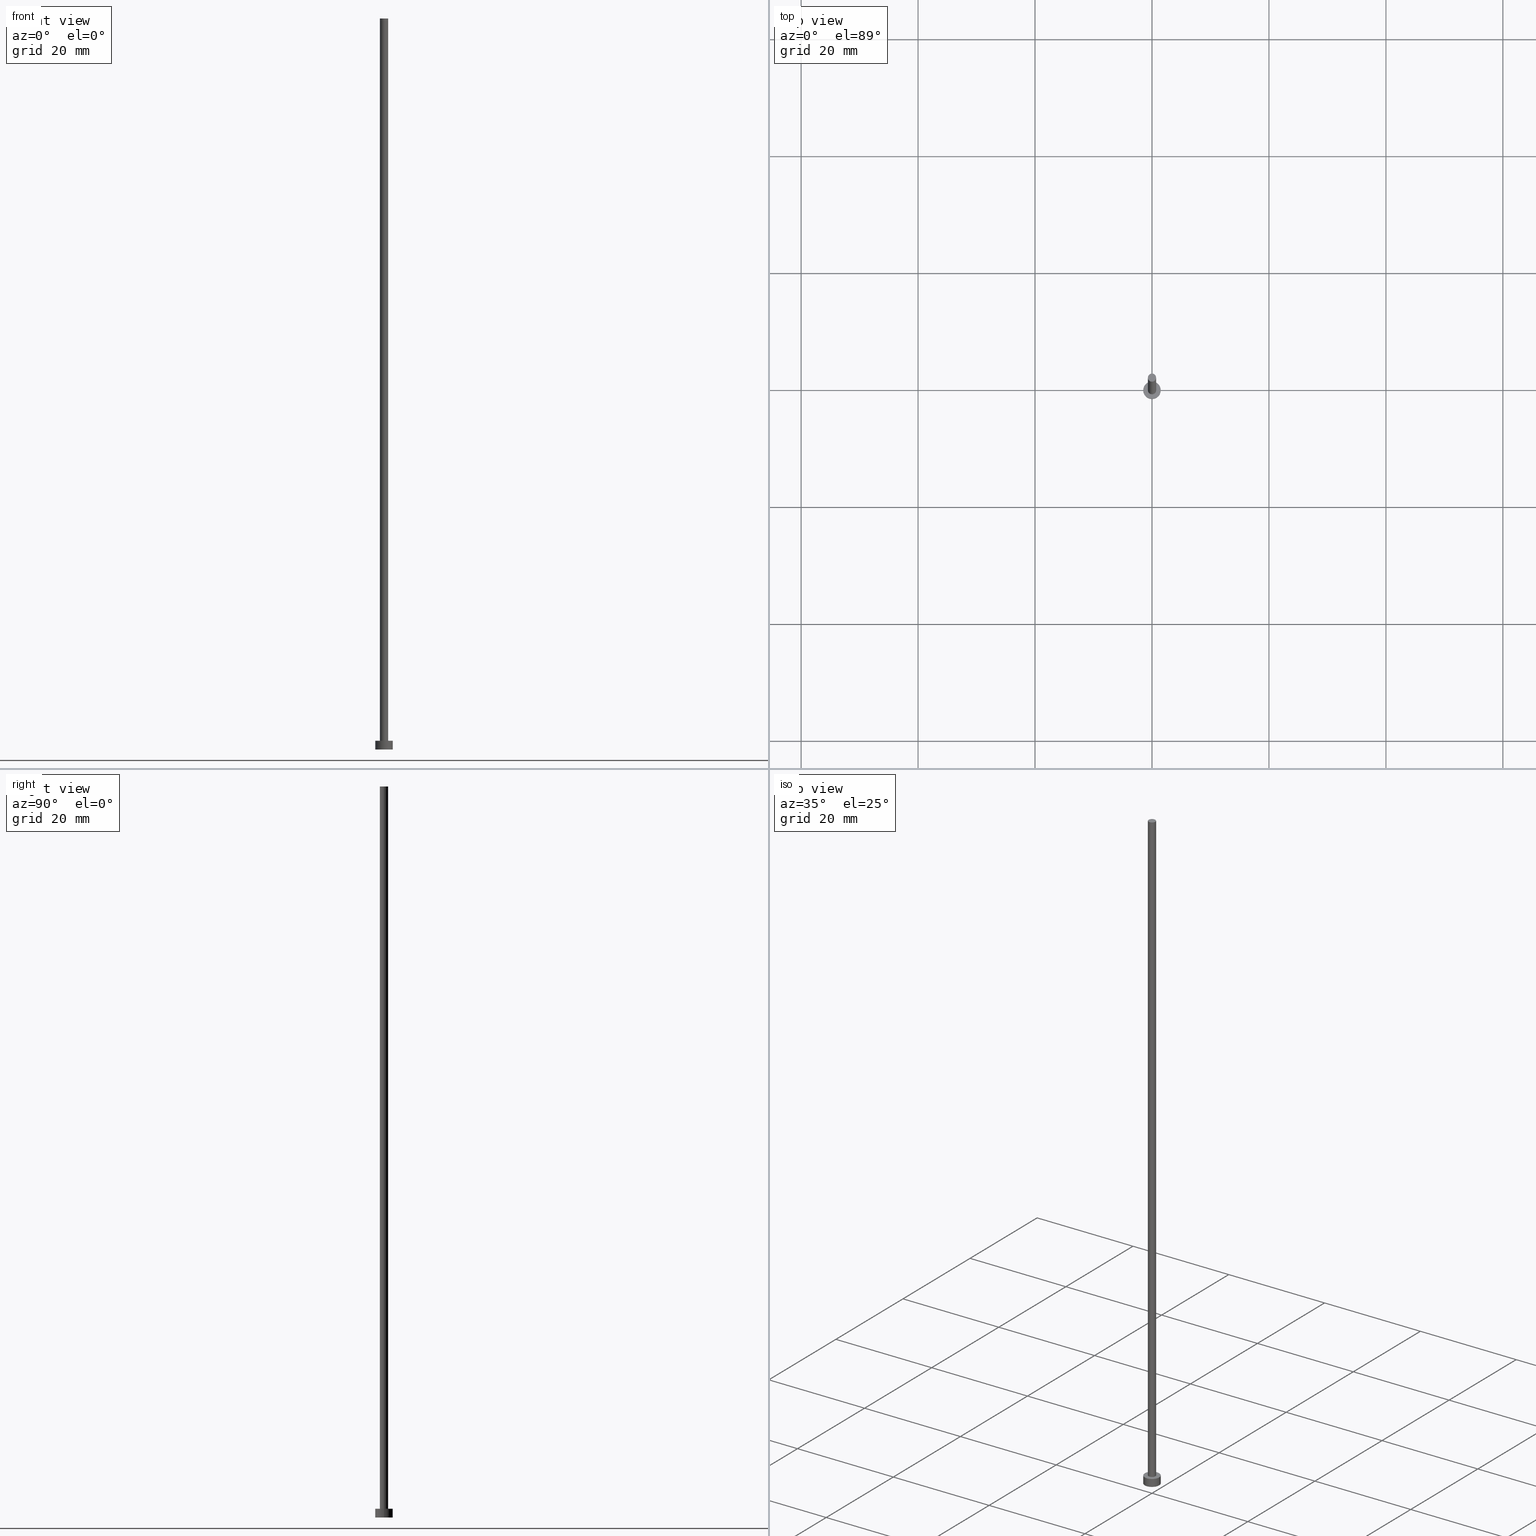
[diagram: canonical four-view strip — front | top / right | iso, engineering-drawing reading convention]
A machine part, canonical four-view strip (front | top / right | iso — engineering-drawing reading convention). The complete STEP part file that produces these views, byte-faithful:
ISO-10303-21;
HEADER;
FILE_DESCRIPTION (( 'STEP AP203' ),
    '1' );
FILE_NAME ('992d.STEP',
    '2023-02-13T15:25:34',
    ( '' ),
    ( '' ),
    'SwSTEP 2.0',
    'SolidWorks 2019',
    '' );
FILE_SCHEMA (( 'CONFIG_CONTROL_DESIGN' ));
ENDSEC;

DATA;
#1 = CALENDAR_DATE ( 2023, 13, 2 ) ;
#2 = LOCAL_TIME ( 16, 25, 34.00000000000000000, #56 ) ;
#3 = LOCAL_TIME ( 16, 25, 34.00000000000000000, #108 ) ;
#4 = CALENDAR_DATE ( 2023, 13, 2 ) ;
#5 = APPROVAL_STATUS ( 'not_yet_approved' ) ;
#6 = CIRCLE ( 'NONE', #38, 0.6999999999999999556 ) ;
#7 = LOCAL_TIME ( 16, 25, 34.00000000000000000, #53 ) ;
#8 = ORIENTED_EDGE ( 'NONE', *, *, #213, .F. ) ;
#9 = APPROVAL ( #41, 'NEUR�EN�' ) ;
#10 = AXIS2_PLACEMENT_3D ( 'NONE', #130, #119, #65 ) ;
#11 = EDGE_CURVE ( 'NONE', #186, #139, #252, .T. ) ;
#12 = DIRECTION ( 'NONE',  ( -0.000000000000000000, -0.000000000000000000, -1.000000000000000000 ) ) ;
#13 = CARTESIAN_POINT ( 'NONE',  ( 0.000000000000000000, 0.000000000000000000, 125.0000000000000000 ) ) ;
#14 = CARTESIAN_POINT ( 'NONE',  ( 1.500000000000000222, 1.836970198721030181E-16, 0.000000000000000000 ) ) ;
#15 = PLANE ( 'NONE',  #187 ) ;
#16 = CARTESIAN_POINT ( 'NONE',  ( 0.000000000000000000, 0.000000000000000000, 1.500000000000000000 ) ) ;
#17 = ORIENTED_EDGE ( 'NONE', *, *, #213, .T. ) ;
#18 = PERSON_AND_ORGANIZATION_ROLE ( 'design_owner' ) ;
#19 = VERTEX_POINT ( 'NONE', #232 ) ;
#20 = APPLICATION_PROTOCOL_DEFINITION ( 'international standard', 'config_control_design', 1994, #49 ) ;
#21 = PRODUCT_DEFINITION ( 'NEZN�M�', '', #111, #59 ) ;
#22 = AXIS2_PLACEMENT_3D ( 'NONE', #242, #77, #156 ) ;
#23 = PRODUCT_RELATED_PRODUCT_CATEGORY ( 'detail', '', ( #109 ) ) ;
#24 = PERSON_AND_ORGANIZATION ( #247, #158 ) ;
#25 = APPROVAL_DATE_TIME ( #110, #9 ) ;
#26 = PERSON_AND_ORGANIZATION ( #247, #158 ) ;
#27 = CC_DESIGN_PERSON_AND_ORGANIZATION_ASSIGNMENT ( #248, #18, ( #109 ) ) ;
#28 = AXIS2_PLACEMENT_3D ( 'NONE', #140, #160, #206 ) ;
#29 = ORIENTED_EDGE ( 'NONE', *, *, #218, .F. ) ;
#30 = CYLINDRICAL_SURFACE ( 'NONE', #76, 1.500000000000000222 ) ;
#31 = EDGE_CURVE ( 'NONE', #19, #193, #73, .T. ) ;
#32 = DIRECTION ( 'NONE',  ( 0.000000000000000000, 0.000000000000000000, 1.000000000000000000 ) ) ;
#33 = EDGE_LOOP ( 'NONE', ( #122, #70, #204, #249 ) ) ;
#34 = ADVANCED_FACE ( 'NONE', ( #220 ), #30, .T. ) ;
#35 = VECTOR ( 'NONE', #202, 1000.000000000000000 ) ;
#36 = DIRECTION ( 'NONE',  ( 1.000000000000000000, 0.000000000000000000, 0.000000000000000000 ) ) ;
#37 = ORIENTED_EDGE ( 'NONE', *, *, #31, .F. ) ;
#38 = AXIS2_PLACEMENT_3D ( 'NONE', #16, #148, #215 ) ;
#39 = ORIENTED_EDGE ( 'NONE', *, *, #116, .T. ) ;
#40 = AXIS2_PLACEMENT_3D ( 'NONE', #240, #64, #112 ) ;
#41 = APPROVAL_STATUS ( 'not_yet_approved' ) ;
#42 = APPROVAL_PERSON_ORGANIZATION ( #26, #9, #133 ) ;
#43 = CARTESIAN_POINT ( 'NONE',  ( -0.6999999999999999556, 0.000000000000000000, 125.0000000000000000 ) ) ;
#44 = SHAPE_DEFINITION_REPRESENTATION ( #188, #207 ) ;
#45 = DIRECTION ( 'NONE',  ( -0.000000000000000000, -0.000000000000000000, -1.000000000000000000 ) ) ;
#46 = DATE_AND_TIME ( #129, #3 ) ;
#47 = LINE ( 'NONE', #225, #201 ) ;
#48 = DIRECTION ( 'NONE',  ( -0.000000000000000000, -0.000000000000000000, -1.000000000000000000 ) ) ;
#49 = APPLICATION_CONTEXT ( 'configuration controlled 3d designs of mechanical parts and assemblies' ) ;
#50 = DIRECTION ( 'NONE',  ( 1.000000000000000000, 0.000000000000000000, 0.000000000000000000 ) ) ;
#51 = ORIENTED_EDGE ( 'NONE', *, *, #55, .T. ) ;
#52 = CARTESIAN_POINT ( 'NONE',  ( 0.000000000000000000, 0.000000000000000000, 1.500000000000000000 ) ) ;
#53 = COORDINATED_UNIVERSAL_TIME_OFFSET ( 1, 0, .AHEAD. ) ;
#54 = CC_DESIGN_APPROVAL ( #255, ( #87 ) ) ;
#55 = EDGE_CURVE ( 'NONE', #186, #113, #105, .T. ) ;
#56 = COORDINATED_UNIVERSAL_TIME_OFFSET ( 1, 0, .AHEAD. ) ;
#57 = CARTESIAN_POINT ( 'NONE',  ( 1.500000000000000222, 1.836970198721030181E-16, 1.500000000000000000 ) ) ;
#58 = CIRCLE ( 'NONE', #117, 0.6999999999999999556 ) ;
#59 = DESIGN_CONTEXT ( 'detailed design', #49, 'design' ) ;
#60 = ORIENTED_EDGE ( 'NONE', *, *, #62, .T. ) ;
#61 = AXIS2_PLACEMENT_3D ( 'NONE', #224, #182, #244 ) ;
#62 = EDGE_CURVE ( 'NONE', #19, #157, #197, .T. ) ;
#63 = PERSON_AND_ORGANIZATION ( #247, #158 ) ;
#64 = DIRECTION ( 'NONE',  ( 0.000000000000000000, 0.000000000000000000, 1.000000000000000000 ) ) ;
#65 = DIRECTION ( 'NONE',  ( 1.000000000000000000, 0.000000000000000000, 0.000000000000000000 ) ) ;
#66 =( LENGTH_UNIT ( ) NAMED_UNIT ( * ) SI_UNIT ( .MILLI., .METRE. ) );
#67 = DIRECTION ( 'NONE',  ( -1.000000000000000000, 0.000000000000000000, 0.000000000000000000 ) ) ;
#68 = EDGE_CURVE ( 'NONE', #139, #91, #58, .T. ) ;
#69 = PERSON_AND_ORGANIZATION ( #247, #158 ) ;
#70 = ORIENTED_EDGE ( 'NONE', *, *, #218, .T. ) ;
#71 = DATE_AND_TIME ( #1, #7 ) ;
#72 = ADVANCED_FACE ( 'NONE', ( #123 ), #161, .F. ) ;
#73 = CIRCLE ( 'NONE', #228, 1.500000000000000222 ) ;
#74 = APPROVAL_DATE_TIME ( #71, #255 ) ;
#75 = CARTESIAN_POINT ( 'NONE',  ( 0.000000000000000000, 0.000000000000000000, 125.0000000000000000 ) ) ;
#76 = AXIS2_PLACEMENT_3D ( 'NONE', #177, #45, #223 ) ;
#77 = DIRECTION ( 'NONE',  ( 0.000000000000000000, 0.000000000000000000, 1.000000000000000000 ) ) ;
#78 =( NAMED_UNIT ( * ) SI_UNIT ( $, .STERADIAN. ) SOLID_ANGLE_UNIT ( ) );
#79 = ADVANCED_FACE ( 'NONE', ( #183 ), #180, .T. ) ;
#80 = ORIENTED_EDGE ( 'NONE', *, *, #55, .F. ) ;
#81 = DIRECTION ( 'NONE',  ( 0.000000000000000000, 0.000000000000000000, 1.000000000000000000 ) ) ;
#82 = CARTESIAN_POINT ( 'NONE',  ( 0.6999999999999999556, 8.572527594031471957E-17, 125.0000000000000000 ) ) ;
#83 = DIRECTION ( 'NONE',  ( -0.000000000000000000, -0.000000000000000000, -1.000000000000000000 ) ) ;
#84 = ORIENTED_EDGE ( 'NONE', *, *, #11, .F. ) ;
#85 = APPROVAL_STATUS ( 'not_yet_approved' ) ;
#86 = CC_DESIGN_PERSON_AND_ORGANIZATION_ASSIGNMENT ( #24, #196, ( #111 ) ) ;
#87 = SECURITY_CLASSIFICATION ( '', '', #169 ) ;
#88 = EDGE_CURVE ( 'NONE', #91, #139, #6, .T. ) ;
#89 = APPROVAL_ROLE ( '' ) ;
#90 = CARTESIAN_POINT ( 'NONE',  ( -0.6999999999999999556, 0.000000000000000000, 125.0000000000000000 ) ) ;
#91 = VERTEX_POINT ( 'NONE', #144 ) ;
#92 = CC_DESIGN_APPROVAL ( #9, ( #111 ) ) ;
#93 = ADVANCED_FACE ( 'NONE', ( #237 ), #126, .T. ) ;
#94 = CARTESIAN_POINT ( 'NONE',  ( 0.6999999999999999556, 8.572527594031471957E-17, 1.500000000000000000 ) ) ;
#95 = CARTESIAN_POINT ( 'NONE',  ( 0.000000000000000000, 0.000000000000000000, 1.500000000000000000 ) ) ;
#96 = EDGE_CURVE ( 'NONE', #173, #157, #203, .T. ) ;
#97 = DIRECTION ( 'NONE',  ( 1.000000000000000000, 0.000000000000000000, -0.000000000000000000 ) ) ;
#98 = FACE_OUTER_BOUND ( 'NONE', #230, .T. ) ;
#99 = DIRECTION ( 'NONE',  ( 0.000000000000000000, 0.000000000000000000, 1.000000000000000000 ) ) ;
#100 = LOCAL_TIME ( 16, 25, 34.00000000000000000, #254 ) ;
#101 = LOCAL_TIME ( 16, 25, 34.00000000000000000, #127 ) ;
#102 = ORIENTED_EDGE ( 'NONE', *, *, #88, .T. ) ;
#103 = ADVANCED_FACE ( 'NONE', ( #209 ), #15, .T. ) ;
#104 = DATE_AND_TIME ( #168, #101 ) ;
#105 = CIRCLE ( 'NONE', #40, 0.6999999999999999556 ) ;
#106 = AXIS2_PLACEMENT_3D ( 'NONE', #211, #251, #124 ) ;
#107 = APPROVAL_PERSON_ORGANIZATION ( #69, #231, #212 ) ;
#108 = COORDINATED_UNIVERSAL_TIME_OFFSET ( 1, 0, .AHEAD. ) ;
#109 = PRODUCT ( '992d', '992d', '', ( #184 ) ) ;
#110 = DATE_AND_TIME ( #190, #2 ) ;
#111 = PRODUCT_DEFINITION_FORMATION_WITH_SPECIFIED_SOURCE ( 'LIBOVOLN�', '', #109, .NOT_KNOWN. ) ;
#112 = DIRECTION ( 'NONE',  ( 1.000000000000000000, 0.000000000000000000, 0.000000000000000000 ) ) ;
#113 = VERTEX_POINT ( 'NONE', #43 ) ;
#114 = CC_DESIGN_DATE_AND_TIME_ASSIGNMENT ( #46, #216, ( #87 ) ) ;
#115 = DIRECTION ( 'NONE',  ( 1.000000000000000000, 0.000000000000000000, -0.000000000000000000 ) ) ;
#116 = EDGE_CURVE ( 'NONE', #157, #173, #234, .T. ) ;
#117 = AXIS2_PLACEMENT_3D ( 'NONE', #95, #81, #50 ) ;
#118 = EDGE_LOOP ( 'NONE', ( #191, #152 ) ) ;
#119 = DIRECTION ( 'NONE',  ( 0.000000000000000000, 0.000000000000000000, 1.000000000000000000 ) ) ;
#120 = ORIENTED_EDGE ( 'NONE', *, *, #68, .T. ) ;
#121 = CARTESIAN_POINT ( 'NONE',  ( 0.000000000000000000, 0.000000000000000000, 125.0000000000000000 ) ) ;
#122 = ORIENTED_EDGE ( 'NONE', *, *, #174, .F. ) ;
#123 = FACE_OUTER_BOUND ( 'NONE', #145, .T. ) ;
#124 = DIRECTION ( 'NONE',  ( 1.000000000000000000, 0.000000000000000000, 0.000000000000000000 ) ) ;
#125 = CC_DESIGN_DATE_AND_TIME_ASSIGNMENT ( #104, #132, ( #21 ) ) ;
#126 = CYLINDRICAL_SURFACE ( 'NONE', #229, 1.500000000000000222 ) ;
#127 = COORDINATED_UNIVERSAL_TIME_OFFSET ( 1, 0, .AHEAD. ) ;
#128 = ORIENTED_EDGE ( 'NONE', *, *, #31, .T. ) ;
#129 = CALENDAR_DATE ( 2023, 13, 2 ) ;
#130 = CARTESIAN_POINT ( 'NONE',  ( 0.000000000000000000, 0.000000000000000000, 0.000000000000000000 ) ) ;
#131 = AXIS2_PLACEMENT_3D ( 'NONE', #179, #135, #115 ) ;
#132 = DATE_TIME_ROLE ( 'creation_date' ) ;
#133 = APPROVAL_ROLE ( '' ) ;
#134 = ADVANCED_FACE ( 'NONE', ( #138 ), #226, .T. ) ;
#135 = DIRECTION ( 'NONE',  ( 0.000000000000000000, 0.000000000000000000, 1.000000000000000000 ) ) ;
#136 = LINE ( 'NONE', #90, #35 ) ;
#137 = AXIS2_PLACEMENT_3D ( 'NONE', #13, #245, #67 ) ;
#138 = FACE_OUTER_BOUND ( 'NONE', #170, .T. ) ;
#139 = VERTEX_POINT ( 'NONE', #94 ) ;
#140 = CARTESIAN_POINT ( 'NONE',  ( 0.000000000000000000, 0.000000000000000000, 0.000000000000000000 ) ) ;
#141 = CIRCLE ( 'NONE', #22, 1.500000000000000222 ) ;
#142 = CC_DESIGN_PERSON_AND_ORGANIZATION_ASSIGNMENT ( #63, #214, ( #21 ) ) ;
#143 = DIRECTION ( 'NONE',  ( -0.000000000000000000, -0.000000000000000000, -1.000000000000000000 ) ) ;
#144 = CARTESIAN_POINT ( 'NONE',  ( -0.6999999999999999556, 0.000000000000000000, 1.500000000000000000 ) ) ;
#145 = EDGE_LOOP ( 'NONE', ( #189, #166 ) ) ;
#146 = APPROVAL_DATE_TIME ( #236, #231 ) ;
#147 = AXIS2_PLACEMENT_3D ( 'NONE', #121, #153, #181 ) ;
#148 = DIRECTION ( 'NONE',  ( 0.000000000000000000, 0.000000000000000000, 1.000000000000000000 ) ) ;
#149 = AXIS2_PLACEMENT_3D ( 'NONE', #227, #99, #200 ) ;
#150 = PERSON_AND_ORGANIZATION ( #247, #158 ) ;
#151 = MANIFOLD_SOLID_BREP ( 'P�idat vysunut�m3', #163 ) ;
#152 = ORIENTED_EDGE ( 'NONE', *, *, #68, .F. ) ;
#153 = DIRECTION ( 'NONE',  ( -0.000000000000000000, -0.000000000000000000, -1.000000000000000000 ) ) ;
#154 = PLANE ( 'NONE',  #131 ) ;
#155 =( NAMED_UNIT ( * ) PLANE_ANGLE_UNIT ( ) SI_UNIT ( $, .RADIAN. ) );
#156 = DIRECTION ( 'NONE',  ( 1.000000000000000000, 0.000000000000000000, 0.000000000000000000 ) ) ;
#157 = VERTEX_POINT ( 'NONE', #172 ) ;
#158 = ORGANIZATION ( 'NEUR�EN�', 'NEUR�EN�', '' ) ;
#159 = EDGE_CURVE ( 'NONE', #113, #91, #136, .T. ) ;
#160 = DIRECTION ( 'NONE',  ( 0.000000000000000000, 0.000000000000000000, 1.000000000000000000 ) ) ;
#161 = PLANE ( 'NONE',  #149 ) ;
#162 = DIRECTION ( 'NONE',  ( 0.000000000000000000, 0.000000000000000000, 1.000000000000000000 ) ) ;
#163 = CLOSED_SHELL ( 'NONE', ( #134, #93, #34, #195, #72, #79, #103 ) ) ;
#164 = CIRCLE ( 'NONE', #61, 0.6999999999999999556 ) ;
#165 = DIRECTION ( 'NONE',  ( -1.000000000000000000, 0.000000000000000000, 0.000000000000000000 ) ) ;
#166 = ORIENTED_EDGE ( 'NONE', *, *, #96, .F. ) ;
#167 = ORIENTED_EDGE ( 'NONE', *, *, #159, .F. ) ;
#168 = CALENDAR_DATE ( 2023, 13, 2 ) ;
#169 = SECURITY_CLASSIFICATION_LEVEL ( 'unclassified' ) ;
#170 = EDGE_LOOP ( 'NONE', ( #80, #238, #120, #167 ) ) ;
#171 = CARTESIAN_POINT ( 'NONE',  ( 0.000000000000000000, 0.000000000000000000, 1.500000000000000000 ) ) ;
#172 = CARTESIAN_POINT ( 'NONE',  ( -1.500000000000000222, 0.000000000000000000, 0.000000000000000000 ) ) ;
#173 = VERTEX_POINT ( 'NONE', #14 ) ;
#174 = EDGE_CURVE ( 'NONE', #193, #19, #141, .T. ) ;
#175 = APPROVAL_PERSON_ORGANIZATION ( #219, #255, #89 ) ;
#176 = EDGE_LOOP ( 'NONE', ( #17, #51 ) ) ;
#177 = CARTESIAN_POINT ( 'NONE',  ( 0.000000000000000000, 0.000000000000000000, 1.500000000000000000 ) ) ;
#178 = VECTOR ( 'NONE', #48, 1000.000000000000000 ) ;
#179 = CARTESIAN_POINT ( 'NONE',  ( 0.000000000000000000, 0.000000000000000000, 1.500000000000000000 ) ) ;
#180 = CYLINDRICAL_SURFACE ( 'NONE', #137, 0.6999999999999999556 ) ;
#181 = DIRECTION ( 'NONE',  ( -1.000000000000000000, 0.000000000000000000, 0.000000000000000000 ) ) ;
#182 = DIRECTION ( 'NONE',  ( 0.000000000000000000, 0.000000000000000000, 1.000000000000000000 ) ) ;
#183 = FACE_OUTER_BOUND ( 'NONE', #205, .T. ) ;
#184 = MECHANICAL_CONTEXT ( 'NONE', #222, 'mechanical' ) ;
#185 = CC_DESIGN_SECURITY_CLASSIFICATION ( #87, ( #111 ) ) ;
#186 = VERTEX_POINT ( 'NONE', #243 ) ;
#187 = AXIS2_PLACEMENT_3D ( 'NONE', #75, #32, #97 ) ;
#188 = PRODUCT_DEFINITION_SHAPE ( 'NONE', 'NONE',  #21 ) ;
#189 = ORIENTED_EDGE ( 'NONE', *, *, #116, .F. ) ;
#190 = CALENDAR_DATE ( 2023, 13, 2 ) ;
#191 = ORIENTED_EDGE ( 'NONE', *, *, #88, .F. ) ;
#192 = VECTOR ( 'NONE', #143, 1000.000000000000000 ) ;
#193 = VERTEX_POINT ( 'NONE', #57 ) ;
#194 = UNCERTAINTY_MEASURE_WITH_UNIT (LENGTH_MEASURE( 1.000000000000000082E-05 ), #66, 'distance_accuracy_value', 'NONE');
#195 = ADVANCED_FACE ( 'NONE', ( #217, #98 ), #154, .T. ) ;
#196 = PERSON_AND_ORGANIZATION_ROLE ( 'design_supplier' ) ;
#197 = LINE ( 'NONE', #199, #178 ) ;
#198 = ORIENTED_EDGE ( 'NONE', *, *, #174, .T. ) ;
#199 = CARTESIAN_POINT ( 'NONE',  ( -1.500000000000000222, 0.000000000000000000, 1.500000000000000000 ) ) ;
#200 = DIRECTION ( 'NONE',  ( 1.000000000000000000, 0.000000000000000000, -0.000000000000000000 ) ) ;
#201 = VECTOR ( 'NONE', #12, 1000.000000000000000 ) ;
#202 = DIRECTION ( 'NONE',  ( -0.000000000000000000, -0.000000000000000000, -1.000000000000000000 ) ) ;
#203 = CIRCLE ( 'NONE', #106, 1.500000000000000222 ) ;
#204 = ORIENTED_EDGE ( 'NONE', *, *, #96, .T. ) ;
#205 = EDGE_LOOP ( 'NONE', ( #84, #8, #208, #102 ) ) ;
#206 = DIRECTION ( 'NONE',  ( 1.000000000000000000, 0.000000000000000000, 0.000000000000000000 ) ) ;
#207 = ADVANCED_BREP_SHAPE_REPRESENTATION ( '992d', ( #151, #28 ), #210 ) ;
#208 = ORIENTED_EDGE ( 'NONE', *, *, #159, .T. ) ;
#209 = FACE_OUTER_BOUND ( 'NONE', #176, .T. ) ;
#210 =( GEOMETRIC_REPRESENTATION_CONTEXT ( 3 ) GLOBAL_UNCERTAINTY_ASSIGNED_CONTEXT ( ( #194 ) ) GLOBAL_UNIT_ASSIGNED_CONTEXT ( ( #66, #155, #78 ) ) REPRESENTATION_CONTEXT ( 'NONE', 'WORKASPACE' ) );
#211 = CARTESIAN_POINT ( 'NONE',  ( 0.000000000000000000, 0.000000000000000000, 0.000000000000000000 ) ) ;
#212 = APPROVAL_ROLE ( '' ) ;
#213 = EDGE_CURVE ( 'NONE', #113, #186, #164, .T. ) ;
#214 = PERSON_AND_ORGANIZATION_ROLE ( 'creator' ) ;
#215 = DIRECTION ( 'NONE',  ( 1.000000000000000000, 0.000000000000000000, 0.000000000000000000 ) ) ;
#216 = DATE_TIME_ROLE ( 'classification_date' ) ;
#217 = FACE_BOUND ( 'NONE', #118, .T. ) ;
#218 = EDGE_CURVE ( 'NONE', #193, #173, #47, .T. ) ;
#219 = PERSON_AND_ORGANIZATION ( #247, #158 ) ;
#220 = FACE_OUTER_BOUND ( 'NONE', #253, .T. ) ;
#221 = PERSON_AND_ORGANIZATION_ROLE ( 'creator' ) ;
#222 = APPLICATION_CONTEXT ( 'configuration controlled 3d designs of mechanical parts and assemblies' ) ;
#223 = DIRECTION ( 'NONE',  ( -1.000000000000000000, 0.000000000000000000, 0.000000000000000000 ) ) ;
#224 = CARTESIAN_POINT ( 'NONE',  ( 0.000000000000000000, 0.000000000000000000, 125.0000000000000000 ) ) ;
#225 = CARTESIAN_POINT ( 'NONE',  ( 1.500000000000000222, 1.836970198721030181E-16, 1.500000000000000000 ) ) ;
#226 = CYLINDRICAL_SURFACE ( 'NONE', #147, 0.6999999999999999556 ) ;
#227 = CARTESIAN_POINT ( 'NONE',  ( 0.000000000000000000, 0.000000000000000000, 0.000000000000000000 ) ) ;
#228 = AXIS2_PLACEMENT_3D ( 'NONE', #52, #162, #36 ) ;
#229 = AXIS2_PLACEMENT_3D ( 'NONE', #171, #83, #165 ) ;
#230 = EDGE_LOOP ( 'NONE', ( #128, #198 ) ) ;
#231 = APPROVAL ( #85, 'NEUR�EN�' ) ;
#232 = CARTESIAN_POINT ( 'NONE',  ( -1.500000000000000222, 0.000000000000000000, 1.500000000000000000 ) ) ;
#233 = PERSON_AND_ORGANIZATION ( #247, #158 ) ;
#234 = CIRCLE ( 'NONE', #10, 1.500000000000000222 ) ;
#235 = CC_DESIGN_PERSON_AND_ORGANIZATION_ASSIGNMENT ( #150, #239, ( #87 ) ) ;
#236 = DATE_AND_TIME ( #4, #100 ) ;
#237 = FACE_OUTER_BOUND ( 'NONE', #33, .T. ) ;
#238 = ORIENTED_EDGE ( 'NONE', *, *, #11, .T. ) ;
#239 = PERSON_AND_ORGANIZATION_ROLE ( 'classification_officer' ) ;
#240 = CARTESIAN_POINT ( 'NONE',  ( 0.000000000000000000, 0.000000000000000000, 125.0000000000000000 ) ) ;
#241 = CC_DESIGN_PERSON_AND_ORGANIZATION_ASSIGNMENT ( #233, #221, ( #111 ) ) ;
#242 = CARTESIAN_POINT ( 'NONE',  ( 0.000000000000000000, 0.000000000000000000, 1.500000000000000000 ) ) ;
#243 = CARTESIAN_POINT ( 'NONE',  ( 0.6999999999999999556, 8.572527594031471957E-17, 125.0000000000000000 ) ) ;
#244 = DIRECTION ( 'NONE',  ( 1.000000000000000000, 0.000000000000000000, 0.000000000000000000 ) ) ;
#245 = DIRECTION ( 'NONE',  ( -0.000000000000000000, -0.000000000000000000, -1.000000000000000000 ) ) ;
#246 = CC_DESIGN_APPROVAL ( #231, ( #21 ) ) ;
#247 = PERSON ( 'NEUR�EN�', 'NEUR�EN�', 'NEUR�EN�', ('NEUR�EN�'), ('NEUR�EN�'), ('NEUR�EN�') ) ;
#248 = PERSON_AND_ORGANIZATION ( #247, #158 ) ;
#249 = ORIENTED_EDGE ( 'NONE', *, *, #62, .F. ) ;
#250 = APPLICATION_PROTOCOL_DEFINITION ( 'international standard', 'config_control_design', 1994, #222 ) ;
#251 = DIRECTION ( 'NONE',  ( 0.000000000000000000, 0.000000000000000000, 1.000000000000000000 ) ) ;
#252 = LINE ( 'NONE', #82, #192 ) ;
#253 = EDGE_LOOP ( 'NONE', ( #29, #37, #60, #39 ) ) ;
#254 = COORDINATED_UNIVERSAL_TIME_OFFSET ( 1, 0, .AHEAD. ) ;
#255 = APPROVAL ( #5, 'NEUR�EN�' ) ;
ENDSEC;
END-ISO-10303-21;
